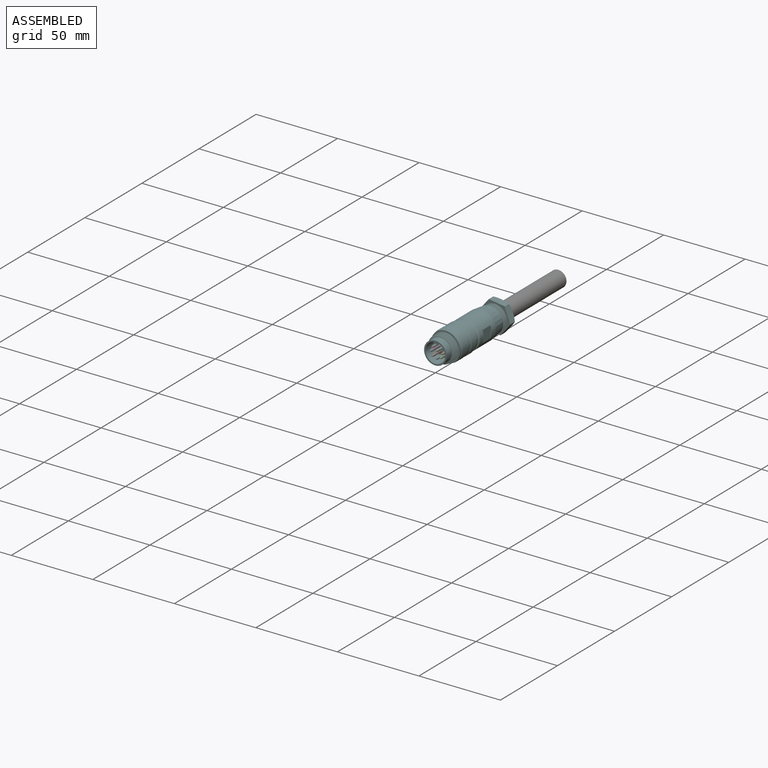
[diagram: assembled view]
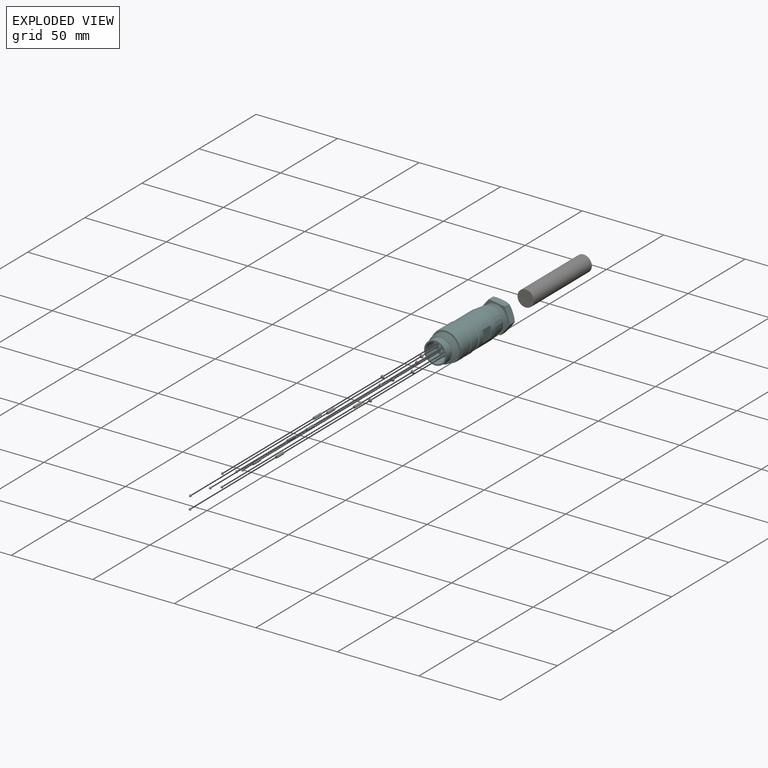
[diagram: exploded view]
GUIDED TOUR — MATED ASSEMBLY (Onshape document 5b1f03c6ac3ff6bbc08bab83, AutoMate assembly 5b1f03c6ac3ff6bbc08bab83_24f6f6ebe6270bc8159a4e62_7262d5ab3a7640678bf60cb5_default)

This assembly has 23 components, labeled P0..P22 below (a component is one placed occurrence of a part; the same part can appear more than once), held together by 22 mates. A mate is a constraint between two components; its type names the relative motion it leaves free:
  REVOLUTE — leaves rotation about the listed axis free (a hinge).
Axis/direction vectors are unit vectors and 'through' points are millimeter coordinates, both in the assembly's world frame.

MATES
  1. REVOLUTE "Revolute 5": P7 <-> P20, axis (0.000, 1.000, 0.000) through (3.50, 1.55, 0.00) mm
  2. REVOLUTE "Revolute 21": P17 <-> P21, axis (0.000, 1.000, 0.000) through (-3.50, 8.50, 0.00) mm
  3. REVOLUTE "Revolute 1": P10 <-> P21, axis (0.000, 1.000, 0.000) through (3.50, 8.50, 0.00) mm
  4. REVOLUTE "Revolute 9": P12 <-> P21, axis (0.000, 1.000, 0.000) through (2.47, 8.50, 2.47) mm
  5. REVOLUTE "Revolute 13": P1 <-> P9, axis (0.000, 1.000, 0.000) through (-2.47, 7.70, -2.47) mm
  6. REVOLUTE "Revolute 22": P14 <-> P21, axis (0.000, -1.000, 0.000) through (0.00, 57.00, 0.00) mm
  7. REVOLUTE "Revolute 8": P0 <-> P8, axis (0.000, 1.000, 0.000) through (2.47, 1.55, 2.47) mm
  8. REVOLUTE "Revolute 3": P4 <-> P2, axis (0.000, 1.000, 0.000) through (2.47, 1.55, -2.47) mm
  9. REVOLUTE "Revolute 10": P11 <-> P5, axis (0.000, -1.000, 0.000) through (0.00, 7.70, 0.75) mm
  10. REVOLUTE "Revolute 17": P6 <-> P13, axis (0.000, -1.000, 0.000) through (-2.47, 7.70, 2.47) mm
  11. REVOLUTE "Revolute 4": P2 <-> P3, axis (0.000, 1.000, 0.000) through (2.47, 7.70, -2.47) mm
  12. REVOLUTE "Revolute 14": P1 <-> P22, axis (0.000, 1.000, 0.000) through (-2.47, 1.55, -2.47) mm
  13. REVOLUTE "Revolute 2": P20 <-> P10, axis (0.000, 1.000, 0.000) through (3.50, 7.70, 0.00) mm
  14. REVOLUTE "Revolute 15": P9 <-> P21, axis (0.000, 1.000, 0.000) through (-2.47, 8.50, -2.47) mm
  15. REVOLUTE "Revolute 20": P19 <-> P16, axis (0.000, -1.000, 0.000) through (-3.50, 1.55, 0.00) mm
  16. REVOLUTE "Revolute 11": P18 <-> P5, axis (0.000, 1.000, 0.000) through (0.00, 1.55, 0.75) mm
  17. REVOLUTE "Revolute 18": P6 <-> P21, axis (0.000, 1.000, 0.000) through (-2.47, 8.50, 2.47) mm
  18. REVOLUTE "Revolute 19": P19 <-> P17, axis (0.000, 1.000, 0.000) through (-3.50, 7.70, 0.00) mm
  19. REVOLUTE "Revolute 6": P3 <-> P21, axis (0.000, 1.000, 0.000) through (2.47, 8.50, -2.47) mm
  20. REVOLUTE "Revolute 16": P15 <-> P13, axis (0.000, 1.000, 0.000) through (-2.47, 1.55, 2.47) mm
  21. REVOLUTE "Revolute 7": P12 <-> P8, axis (0.000, 1.000, 0.000) through (2.47, 7.70, 2.47) mm
  22. REVOLUTE "Revolute 12": P11 <-> P21, axis (0.000, 1.000, 0.000) through (0.00, 8.50, 0.75) mm

ASSEMBLY ORDER
  1. P21 — the base component [order verified]
  2. P17 [order verified]
  3. P11 [order verified]
  4. P10 [order verified]
  5. P9 [order verified]
  6. P6 [order verified]
  7. P12 [order verified]
  8. P3 [order verified]
  9. P20 [order verified]
  10. P19 [order verified]
  11. P13 [order verified]
  12. P8 [order verified]
  13. P5 [order verified]
  14. P2 [order verified]
  15. P1 [order verified]
  16. P22 [order verified]
  17. P18 [order verified]
  18. P15 [order verified]
  19. P7 [order verified]
  20. P0 [order verified]
  21. P16 [order verified]
  22. P4 [order verified]
  23. P14 [order verified]
Order-tag legend:
  [order verified] — this step's position reverses a verified removal order: the component was checked to insert without passing through the ones already placed.

Of the 23 components, 1 carries the full construction recipe — the FeatureScript program that regenerates the part's solid from scratch; the rest are supplied as boundary geometry only.
Because this assembly has more than 12 components, the tour below covers the 12 most significant ones individually (every recipe-attached component first, then the largest by part volume), in assembly order; the remaining 11 are summarized together in a grouped section at the end.
Each toured component is shown spotlighted twice — in the assembled view, then in the exploded view, where a leader line traces a displaced component back to its assembled socket (saturated green if recipe-attached, orange if geometry-only; every other component desaturated gray) — followed by its recipe or geometry summary and the mates that hold it.
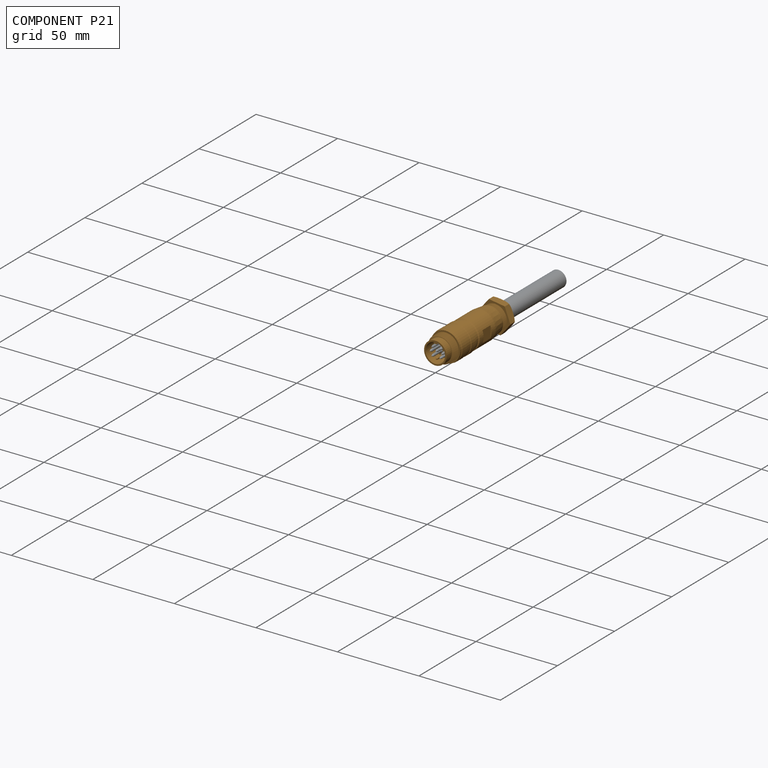
[diagram: component P21 — assembled]
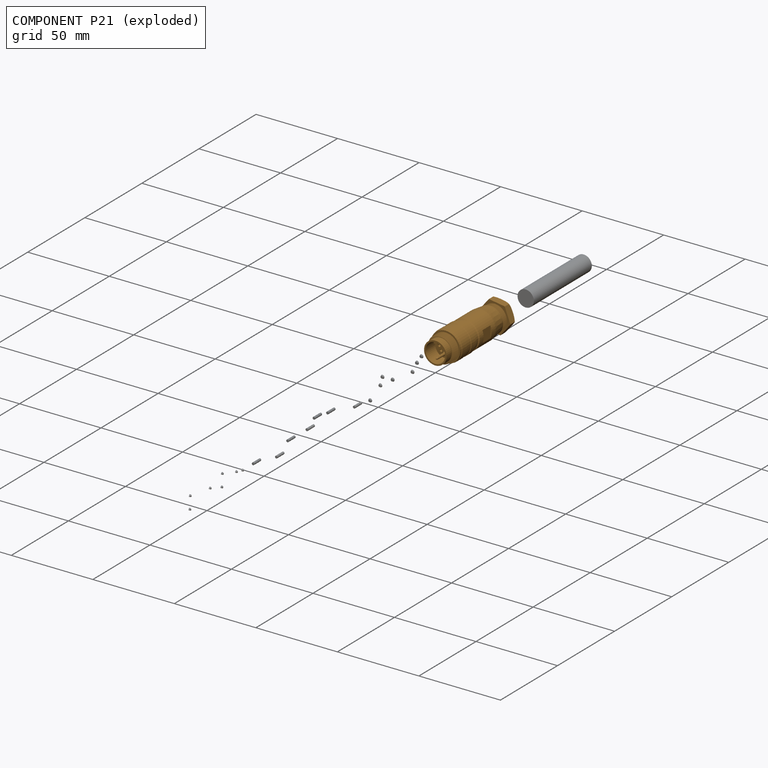
[diagram: component P21 — exploded]
COMPONENT P21 — geometry summary (no construction recipe available for this part):
  bounding box: 57.0 x 21.3 x 21.3 mm
  B-rep topology: 1 solid, 101 faces, 396 edges
  volume: 10733 mm^3 (42% of its bounding box)
Held by: REVOLUTE mate "Revolute 21" to P17; REVOLUTE mate "Revolute 1" to P10; REVOLUTE mate "Revolute 9" to P12; REVOLUTE mate "Revolute 22" to P14; REVOLUTE mate "Revolute 15" to P9; REVOLUTE mate "Revolute 18" to P6; REVOLUTE mate "Revolute 6" to P3; REVOLUTE mate "Revolute 12" to P11.
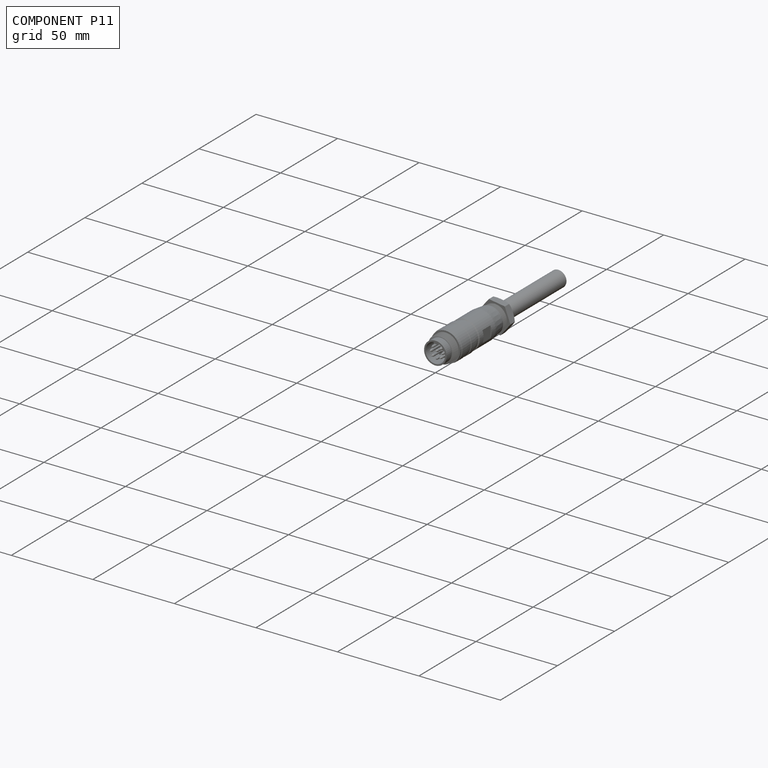
[diagram: component P11 — assembled]
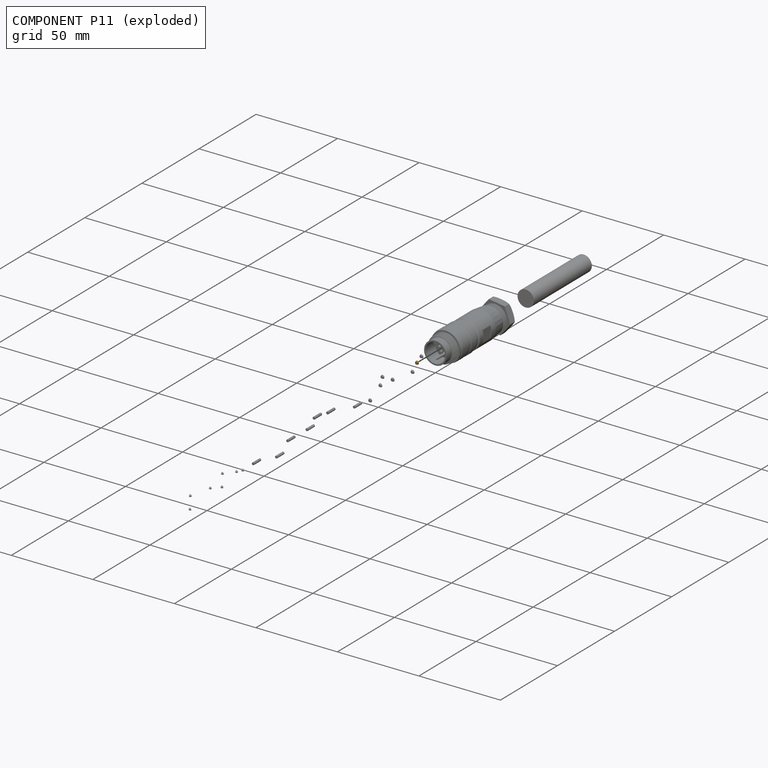
[diagram: component P11 — exploded]
COMPONENT P11 — geometry summary (no construction recipe available for this part):
  bounding box: 2.2 x 2.2 x 0.8 mm
  B-rep topology: 1 solid, 3 faces, 6 edges
  volume: 2 mm^3 (56% of its bounding box)
  symmetry: revolution-symmetric about the x axis through its bounding-box center; mirror-symmetric across its y mid-plane, z mid-plane
Held by: REVOLUTE mate "Revolute 10" to P5; REVOLUTE mate "Revolute 12" to P21.
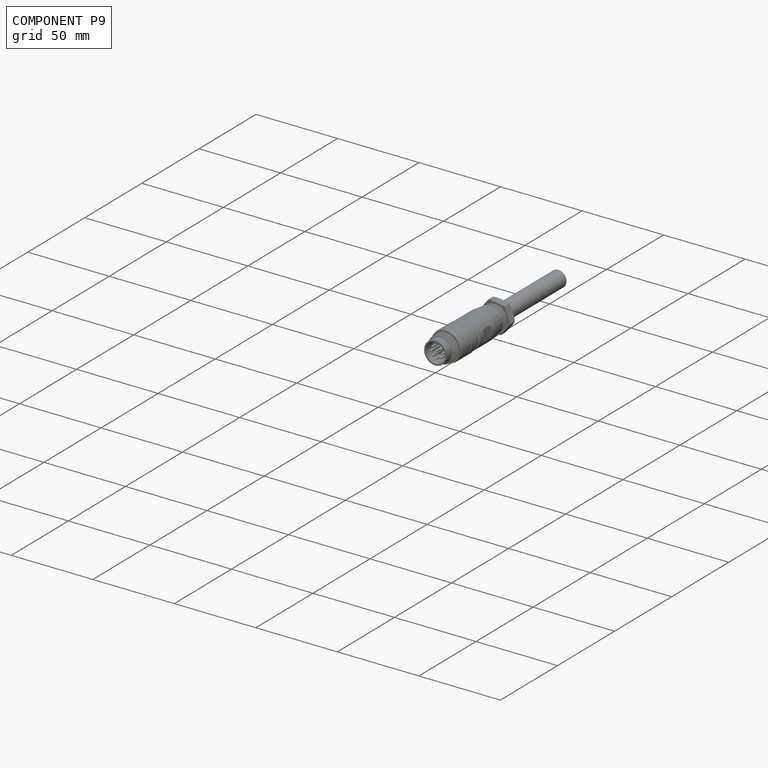
[diagram: component P9 — assembled]
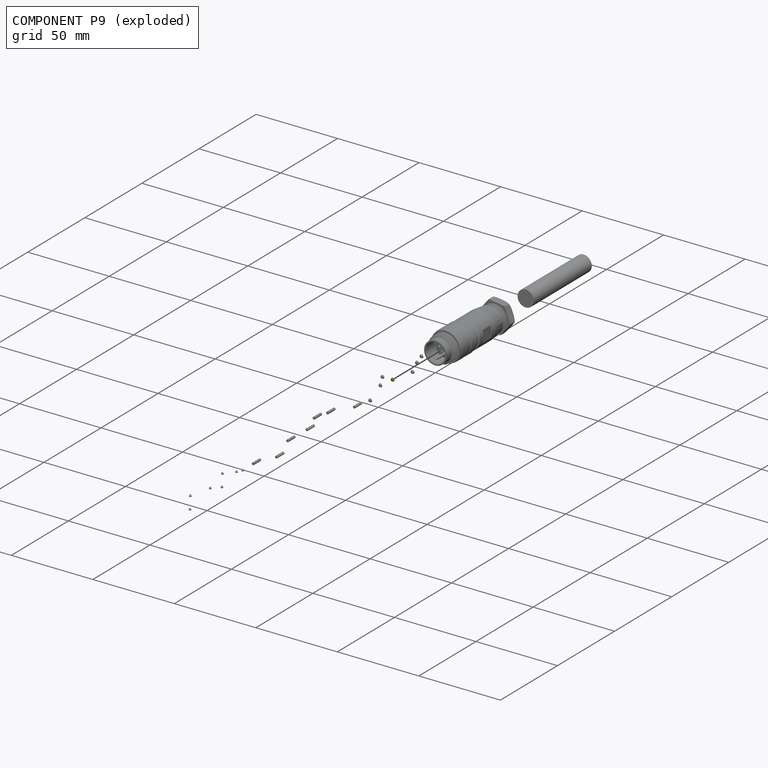
[diagram: component P9 — exploded]
COMPONENT P9 — geometry summary (no construction recipe available for this part):
  bounding box: 2.2 x 2.2 x 0.8 mm
  B-rep topology: 1 solid, 3 faces, 6 edges
  volume: 2 mm^3 (56% of its bounding box)
  symmetry: revolution-symmetric about the x axis through its bounding-box center; mirror-symmetric across its y mid-plane, z mid-plane
Held by: REVOLUTE mate "Revolute 13" to P1; REVOLUTE mate "Revolute 15" to P21.
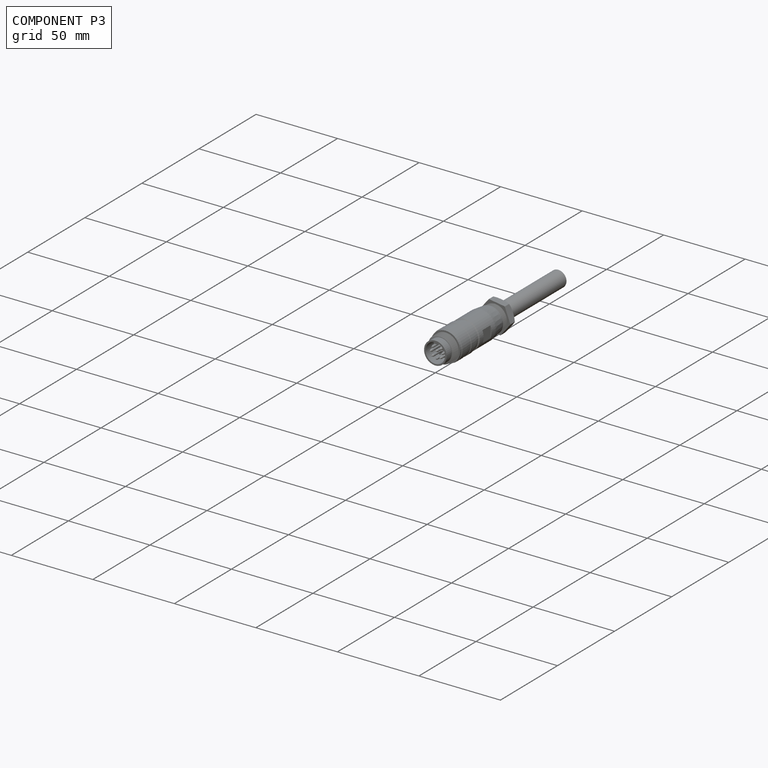
[diagram: component P3 — assembled]
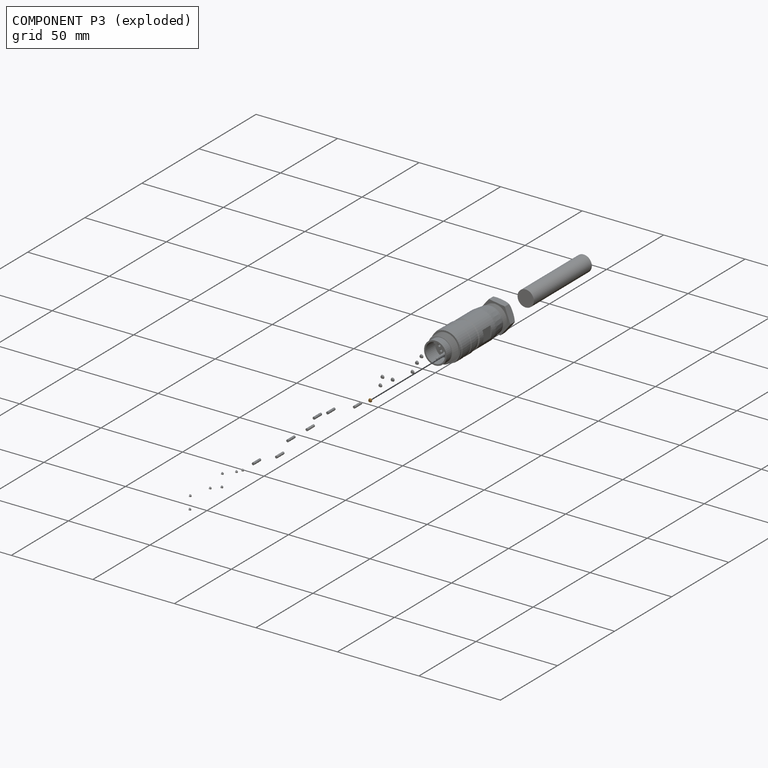
[diagram: component P3 — exploded]
COMPONENT P3 — geometry summary (no construction recipe available for this part):
  bounding box: 2.2 x 2.2 x 0.8 mm
  B-rep topology: 1 solid, 3 faces, 6 edges
  volume: 2 mm^3 (56% of its bounding box)
  symmetry: revolution-symmetric about the x axis through its bounding-box center; mirror-symmetric across its y mid-plane, z mid-plane
Held by: REVOLUTE mate "Revolute 4" to P2; REVOLUTE mate "Revolute 6" to P21.
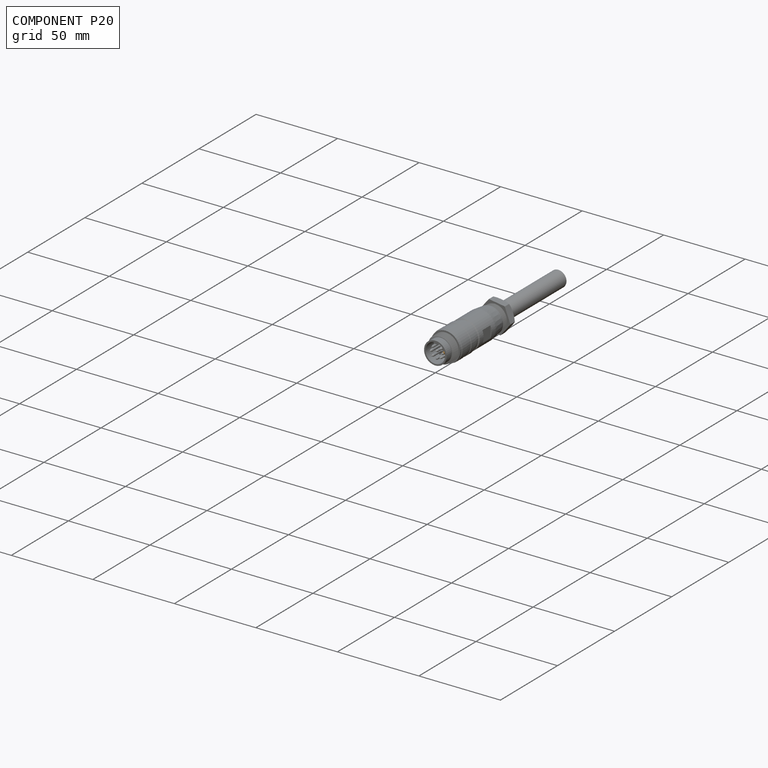
[diagram: component P20 — assembled]
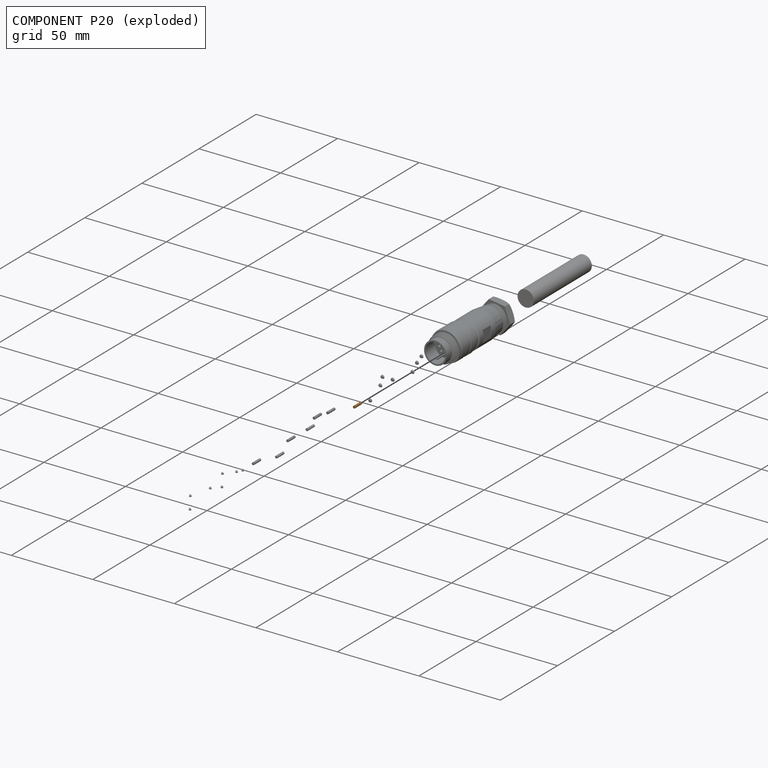
[diagram: component P20 — exploded]
COMPONENT P20 — geometry summary (no construction recipe available for this part):
  bounding box: 6.2 x 1.5 x 1.5 mm
  B-rep topology: 1 solid, 3 faces, 6 edges
  volume: 11 mm^3 (79% of its bounding box)
  symmetry: revolution-symmetric about the x axis through its bounding-box center; 2-fold rotationally symmetric about the y axis; 2-fold rotationally symmetric about the z axis; mirror-symmetric across its x mid-plane, y mid-plane, z mid-plane
Held by: REVOLUTE mate "Revolute 5" to P7; REVOLUTE mate "Revolute 2" to P10.
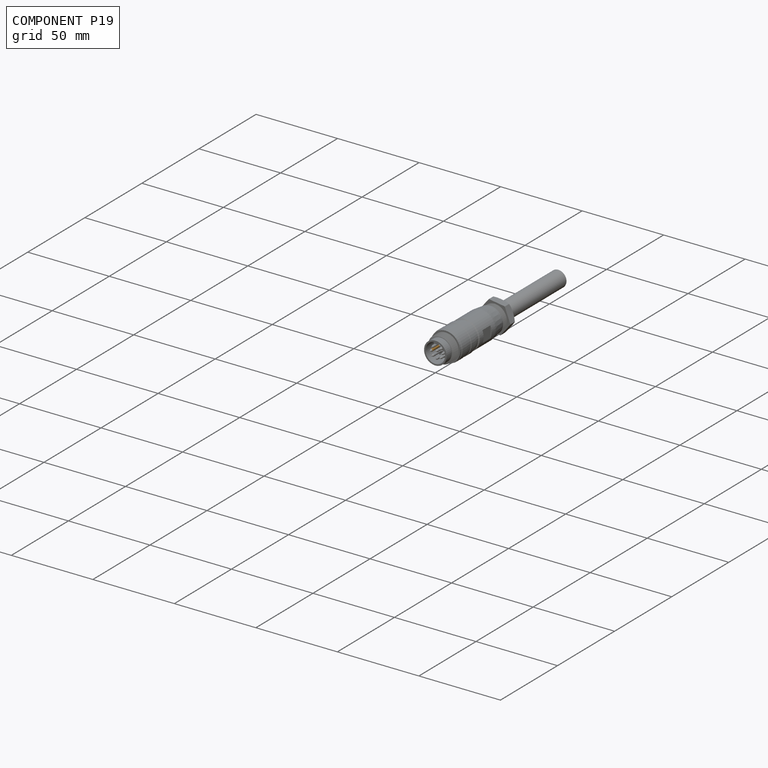
[diagram: component P19 — assembled]
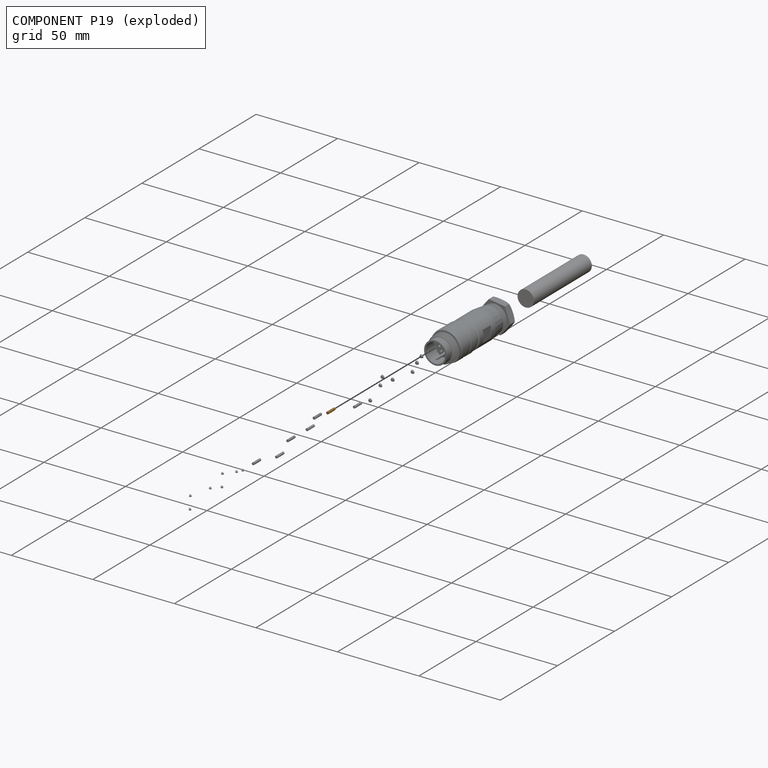
[diagram: component P19 — exploded]
COMPONENT P19 — geometry summary (no construction recipe available for this part):
  bounding box: 6.2 x 1.5 x 1.5 mm
  B-rep topology: 1 solid, 3 faces, 6 edges
  volume: 11 mm^3 (79% of its bounding box)
  symmetry: revolution-symmetric about the x axis through its bounding-box center; 2-fold rotationally symmetric about the y axis; 2-fold rotationally symmetric about the z axis; mirror-symmetric across its x mid-plane, y mid-plane, z mid-plane
Held by: REVOLUTE mate "Revolute 20" to P16; REVOLUTE mate "Revolute 19" to P17.
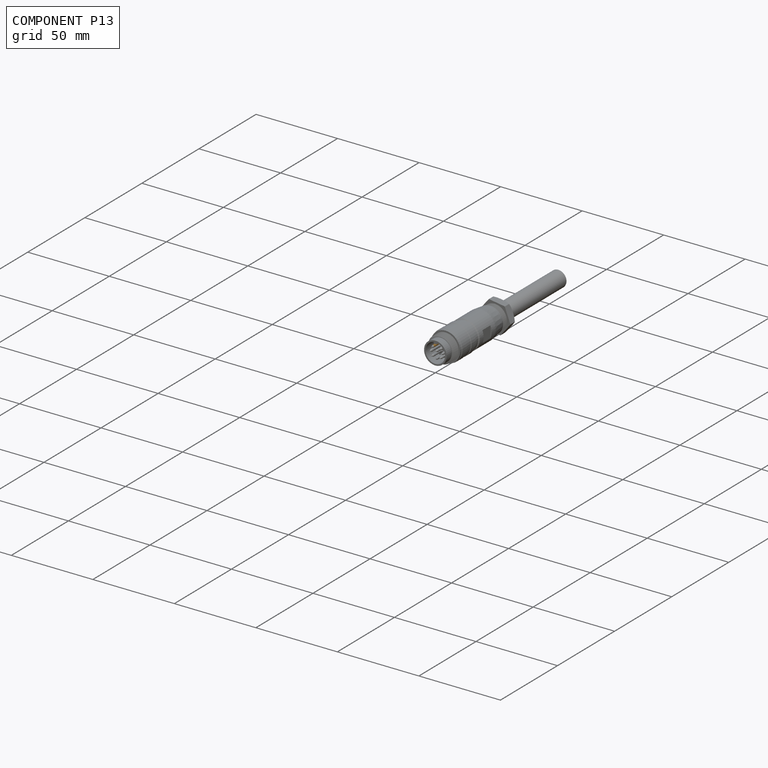
[diagram: component P13 — assembled]
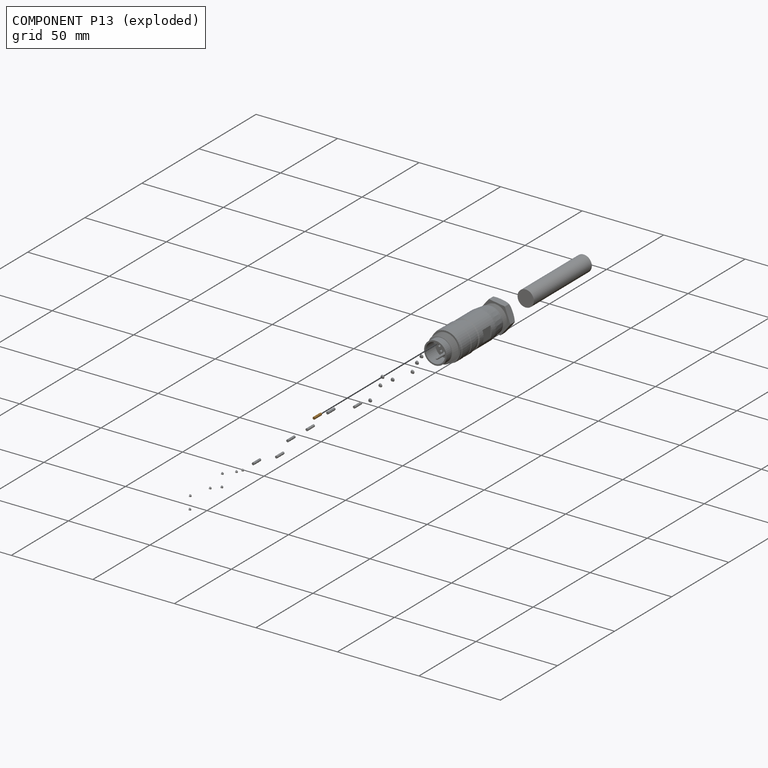
[diagram: component P13 — exploded]
COMPONENT P13 — geometry summary (no construction recipe available for this part):
  bounding box: 6.2 x 1.5 x 1.5 mm
  B-rep topology: 1 solid, 3 faces, 6 edges
  volume: 11 mm^3 (79% of its bounding box)
  symmetry: revolution-symmetric about the x axis through its bounding-box center; 2-fold rotationally symmetric about the y axis; 2-fold rotationally symmetric about the z axis; mirror-symmetric across its x mid-plane, y mid-plane, z mid-plane
Held by: REVOLUTE mate "Revolute 17" to P6; REVOLUTE mate "Revolute 16" to P15.
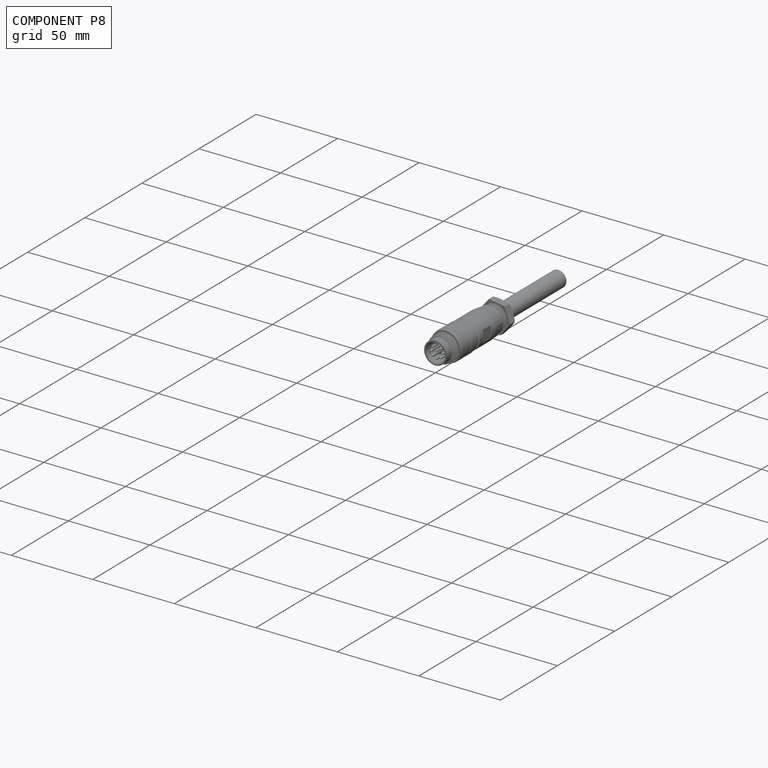
[diagram: component P8 — assembled]
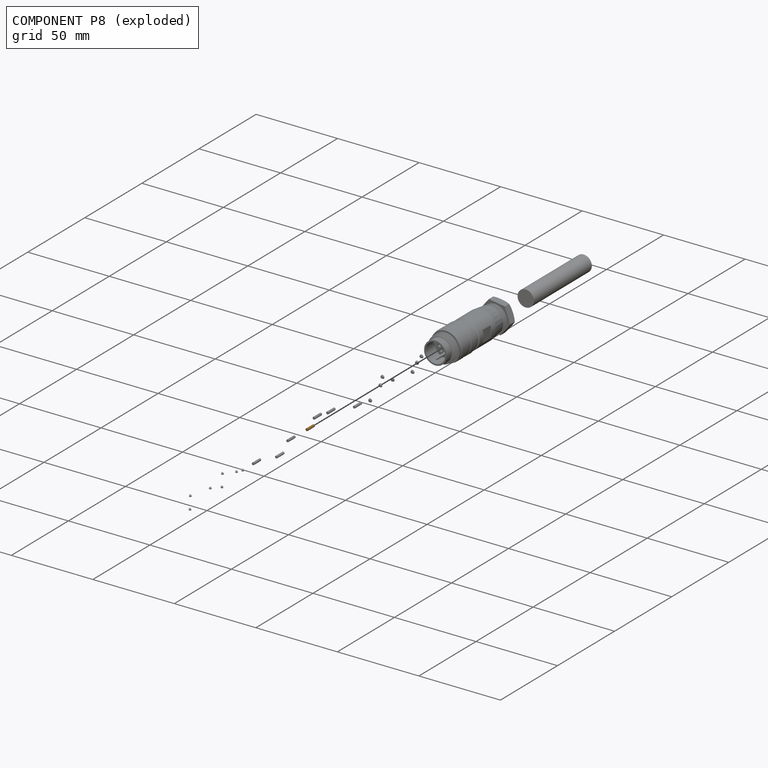
[diagram: component P8 — exploded]
COMPONENT P8 — geometry summary (no construction recipe available for this part):
  bounding box: 6.2 x 1.5 x 1.5 mm
  B-rep topology: 1 solid, 3 faces, 6 edges
  volume: 11 mm^3 (79% of its bounding box)
  symmetry: revolution-symmetric about the x axis through its bounding-box center; 2-fold rotationally symmetric about the y axis; 2-fold rotationally symmetric about the z axis; mirror-symmetric across its x mid-plane, y mid-plane, z mid-plane
Held by: REVOLUTE mate "Revolute 8" to P0; REVOLUTE mate "Revolute 7" to P12.
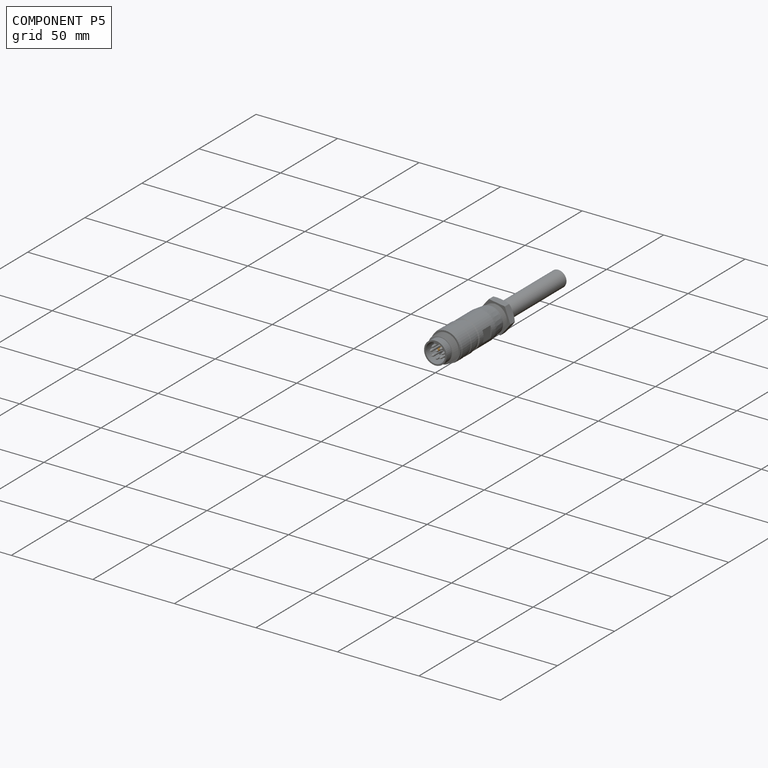
[diagram: component P5 — assembled]
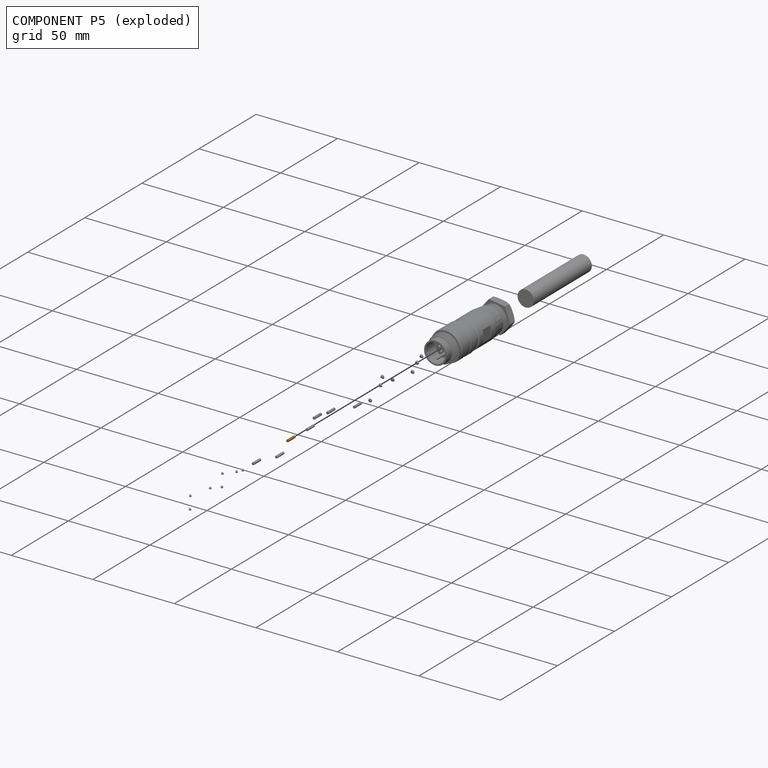
[diagram: component P5 — exploded]
COMPONENT P5 — geometry summary (no construction recipe available for this part):
  bounding box: 6.2 x 1.5 x 1.5 mm
  B-rep topology: 1 solid, 3 faces, 6 edges
  volume: 11 mm^3 (79% of its bounding box)
  symmetry: revolution-symmetric about the x axis through its bounding-box center; 2-fold rotationally symmetric about the y axis; 2-fold rotationally symmetric about the z axis; mirror-symmetric across its x mid-plane, y mid-plane, z mid-plane
Held by: REVOLUTE mate "Revolute 10" to P11; REVOLUTE mate "Revolute 11" to P18.
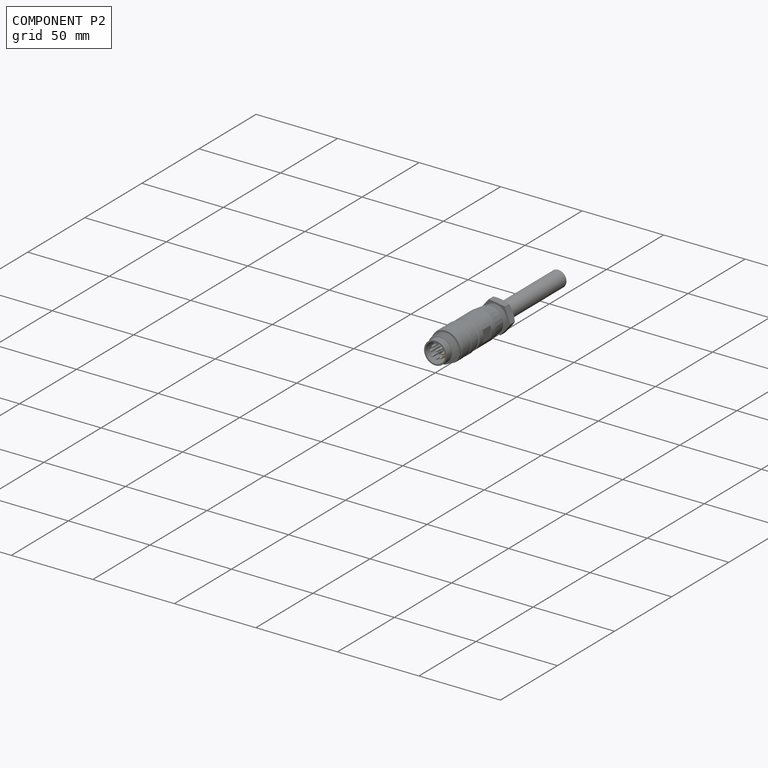
[diagram: component P2 — assembled]
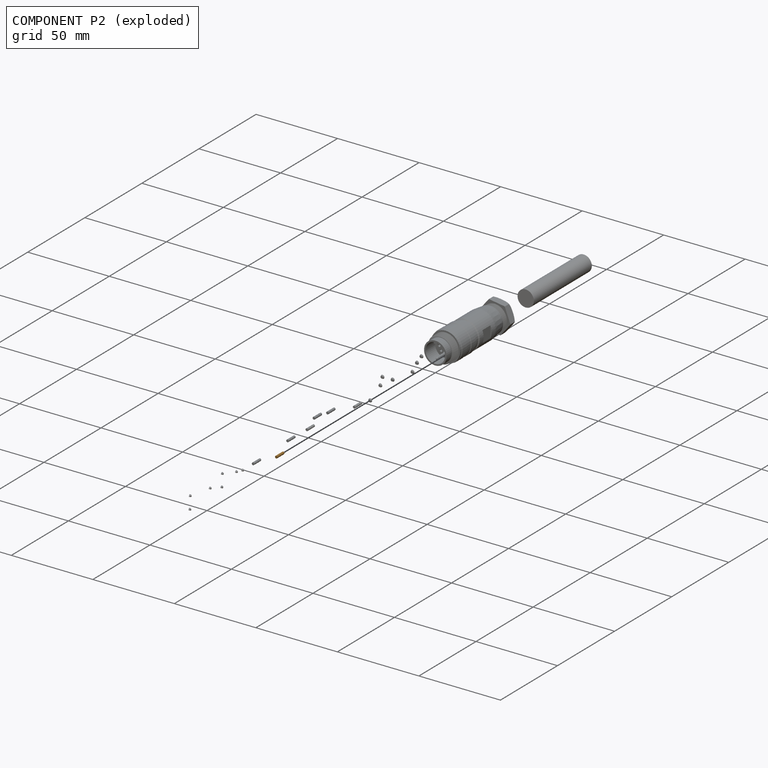
[diagram: component P2 — exploded]
COMPONENT P2 — geometry summary (no construction recipe available for this part):
  bounding box: 6.2 x 1.5 x 1.5 mm
  B-rep topology: 1 solid, 3 faces, 6 edges
  volume: 11 mm^3 (79% of its bounding box)
  symmetry: revolution-symmetric about the x axis through its bounding-box center; 2-fold rotationally symmetric about the y axis; 2-fold rotationally symmetric about the z axis; mirror-symmetric across its x mid-plane, y mid-plane, z mid-plane
Held by: REVOLUTE mate "Revolute 3" to P4; REVOLUTE mate "Revolute 4" to P3.
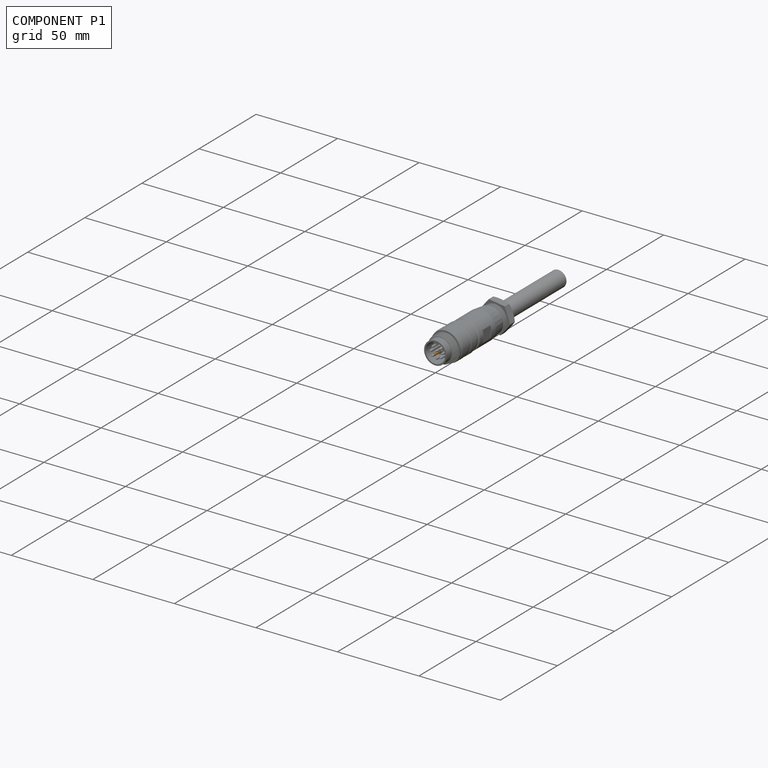
[diagram: component P1 — assembled]
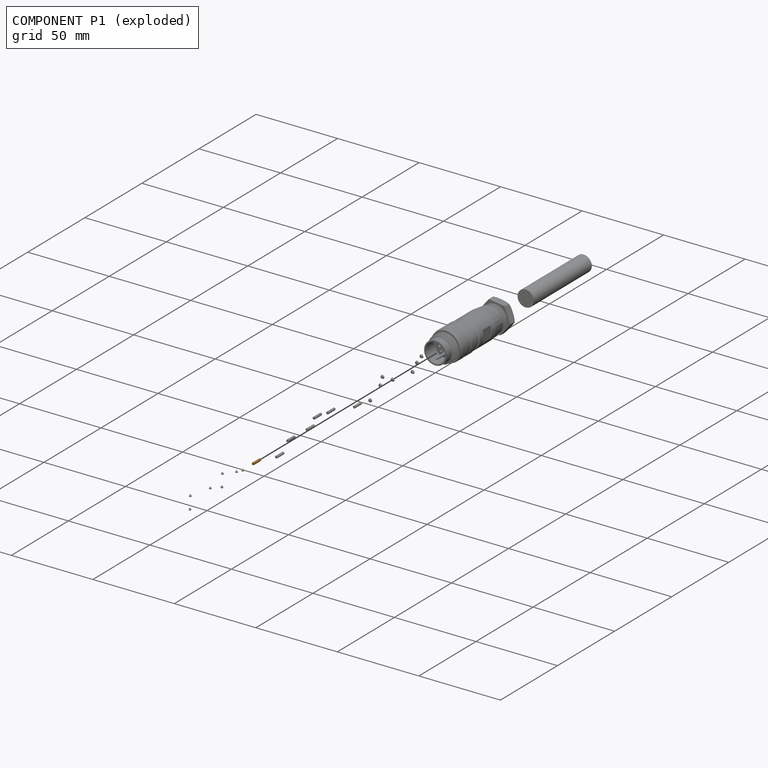
[diagram: component P1 — exploded]
COMPONENT P1 — geometry summary (no construction recipe available for this part):
  bounding box: 6.2 x 1.5 x 1.5 mm
  B-rep topology: 1 solid, 3 faces, 6 edges
  volume: 11 mm^3 (79% of its bounding box)
  symmetry: revolution-symmetric about the x axis through its bounding-box center; 2-fold rotationally symmetric about the y axis; 2-fold rotationally symmetric about the z axis; mirror-symmetric across its x mid-plane, y mid-plane, z mid-plane
Held by: REVOLUTE mate "Revolute 13" to P9; REVOLUTE mate "Revolute 14" to P22.
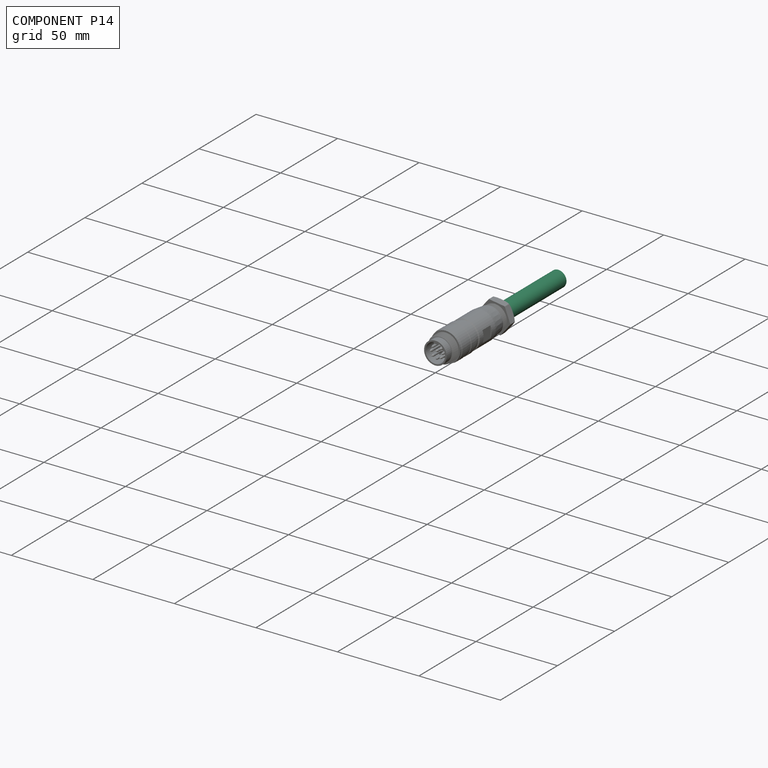
[diagram: component P14 — assembled]
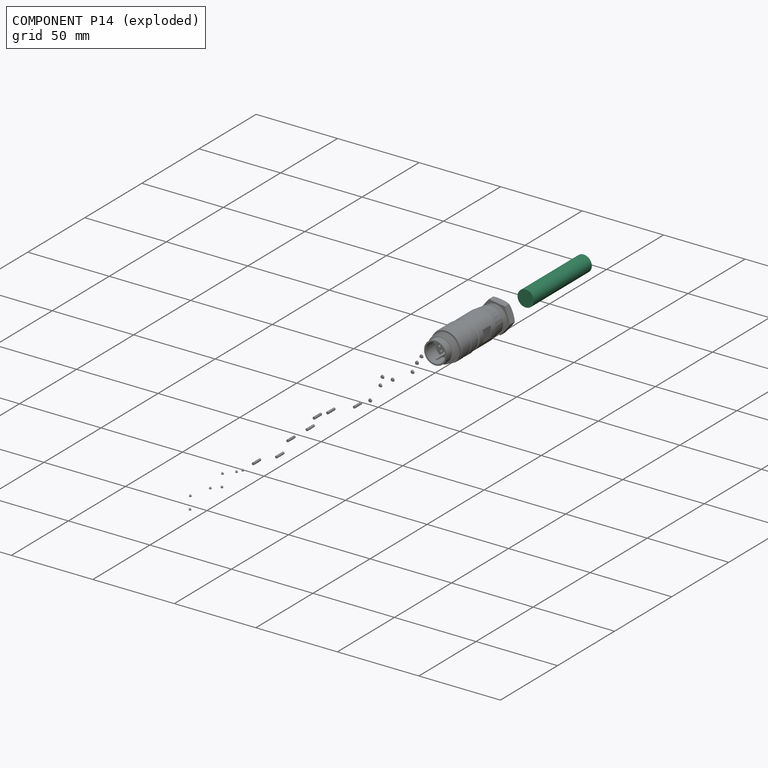
[diagram: component P14 — exploded]
COMPONENT P14 — recipe-attached (CADFS 00285435, mesh-verified: the recipe's output STEP matches this component's geometry to below the mesh-comparison resolution (tessellation chordal tolerance ~0.0791 mm)).
Held by: REVOLUTE mate "Revolute 22" to P21.
Construction recipe (FeatureScript — the CAD program that rebuilds this solid; sketch coordinates are in the units given by the * unit suffixes, e.g. mm):

FeatureScript 1511;
import(path : "onshape/std/geometry.fs", version : "1511.0");
import(path : "onshape/std/common.fs", version : "1511.0");
const mm = millimeter;
const VERTEX = EntityType.VERTEX;
const EDGE = EntityType.EDGE;
const FACE = EntityType.FACE;
const BODY = EntityType.BODY;
function v(x, y){return vector(x, y);}
function OD(order){return orderDisambiguation(order);}
function OSD(set){return originalSetDisambiguation(set);}
function TD(topology){return topologyDisambiguation(topology);}
function TDD(query){return trueDependencyDisambiguation(query);}
function sQuery(a, b, c) {return sketchEntityQuery(a, b, c);}

annotation { "Feature Type Name" : "Feature", "Feature Type Description" : "" }
export const myFeature = defineFeature(function(context is Context, id is Id, definition is map)
    precondition{}
    {
        {
            var Q0;
            Q0=qCreatedBy(makeId("Front.planeOp"),FACE);
            var sketch = newSketch(context, id + "F0", { "sketchPlane" : qUnion([Q0])});
            skCircle(sketch, "E0", {"center": v(0, 0) * mm, "radius": 5 * mm});
            skSolve(sketch);
        }
        {
            var Q0;
            Q0 = qSketchRegion(id + "F0", true);
            extrude(context, id + "F1", {"entities" : qUnion([Q0]), "depth" : 50.8 * mm});
        }
    });
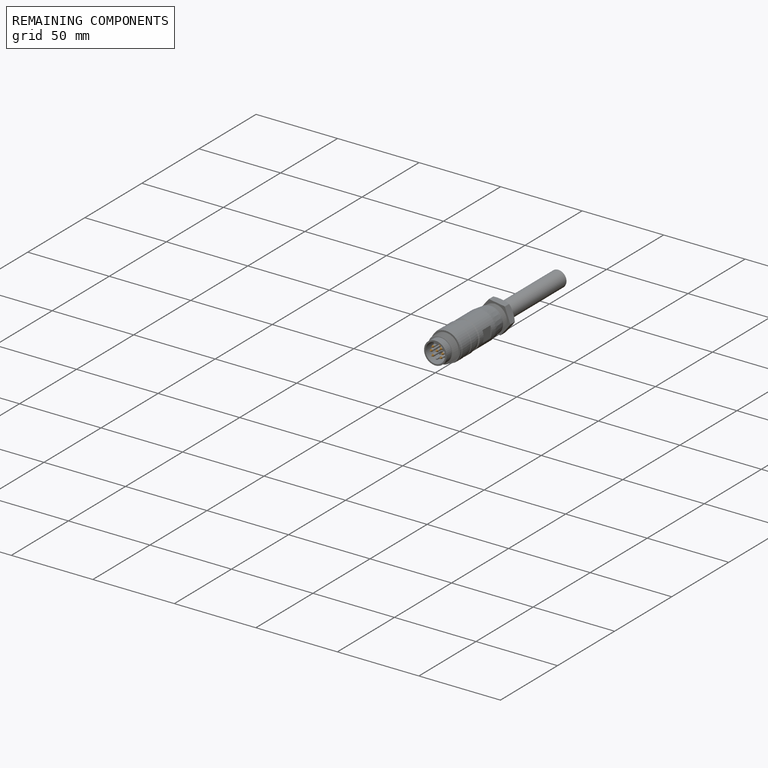
[diagram: remaining components — assembled]
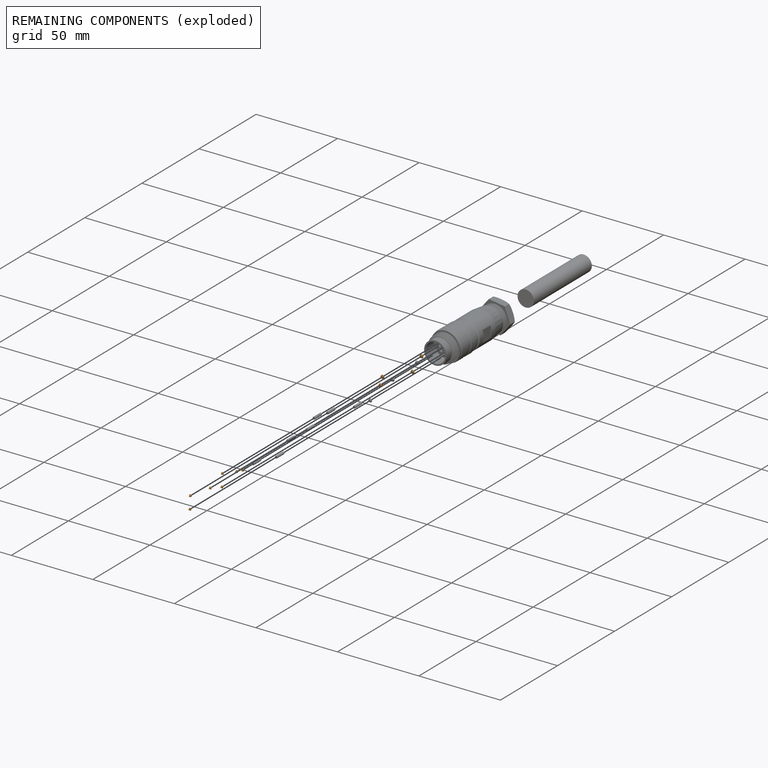
[diagram: remaining components — exploded]
REMAINING COMPONENTS (grouped) — the 11 components below fall outside the per-component tour by the significance rule stated above; both spotlight views highlight the whole group.
  P17: bounding box 2.2 x 2.2 x 0.8 mm, volume 2 mm^3. Held by: REVOLUTE mate "Revolute 21" to P21; REVOLUTE mate "Revolute 19" to P19.
  P10: bounding box 2.2 x 2.2 x 0.8 mm, volume 2 mm^3. Held by: REVOLUTE mate "Revolute 1" to P21; REVOLUTE mate "Revolute 2" to P20.
  P6: bounding box 2.2 x 2.2 x 0.8 mm, volume 2 mm^3. Held by: REVOLUTE mate "Revolute 17" to P13; REVOLUTE mate "Revolute 18" to P21.
  P12: bounding box 2.2 x 2.2 x 0.8 mm, volume 2 mm^3. Held by: REVOLUTE mate "Revolute 9" to P21; REVOLUTE mate "Revolute 7" to P8.
  P22: bounding box 1.5 x 1.5 x 1.5 mm, volume 1 mm^3. Held by: REVOLUTE mate "Revolute 14" to P1.
  P18: bounding box 1.5 x 1.5 x 1.5 mm, volume 1 mm^3. Held by: REVOLUTE mate "Revolute 11" to P5.
  P15: bounding box 1.5 x 1.5 x 1.5 mm, volume 1 mm^3. Held by: REVOLUTE mate "Revolute 16" to P13.
  P7: bounding box 1.5 x 1.5 x 1.5 mm, volume 1 mm^3. Held by: REVOLUTE mate "Revolute 5" to P20.
  P0: bounding box 1.5 x 1.5 x 1.5 mm, volume 1 mm^3. Held by: REVOLUTE mate "Revolute 8" to P8.
  P16: bounding box 1.5 x 1.5 x 1.5 mm, volume 1 mm^3. Held by: REVOLUTE mate "Revolute 20" to P19.
  P4: bounding box 1.5 x 1.5 x 1.5 mm, volume 1 mm^3. Held by: REVOLUTE mate "Revolute 3" to P2.
PROVENANCE & LICENSES
Assembly (occurrences, transforms, mates, per-part STEP geometry): AutoMate dataset, Zenodo record 7776208, CC0.
Construction recipes: CADFS (HuggingFace VladPyatov/CADFS, CC-BY-4.0, layered over the ABC dataset), FeatureScript reconstruction programs keyed by ABC model id.
Join: ABC meta listings map ABC model id -> Onshape documentId; within a shared document, parts are matched by geometric signature (bounding-box dims + volume at 0.1% relative tolerance, exact B-rep face/solid counts).
Verification: 1 of this assembly's 23 components carries a recipe attachment, and every attachment is mesh-verified: the CADFS STEP and the AutoMate member STEP were compared as meshes in their shared local frame (symmetric sampled-point-to-mesh distance); worst across the 1 attachment: below the mesh-comparison resolution (tessellation chordal tolerance ~0.0791 mm) on a 53 mm part.
Renders: orthographic iso camera (az 35 / el 25); the floor grid conveys scale (grid pitch printed in each image; no ruler). In the exploded view each component is displaced by its stored offset vector: the offsets alone carry the explosion direction (mate normal/axis signs are not orientation cues and do not encode it), and separation distances are assigned per mate-chain, not proportionally to assembly-order depth.
